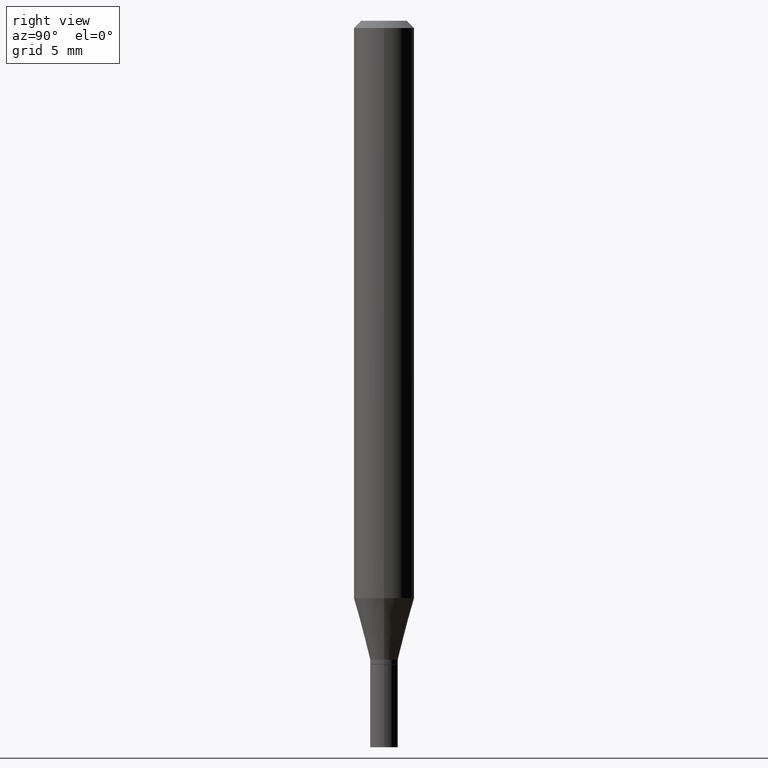
[diagram: clean part render]
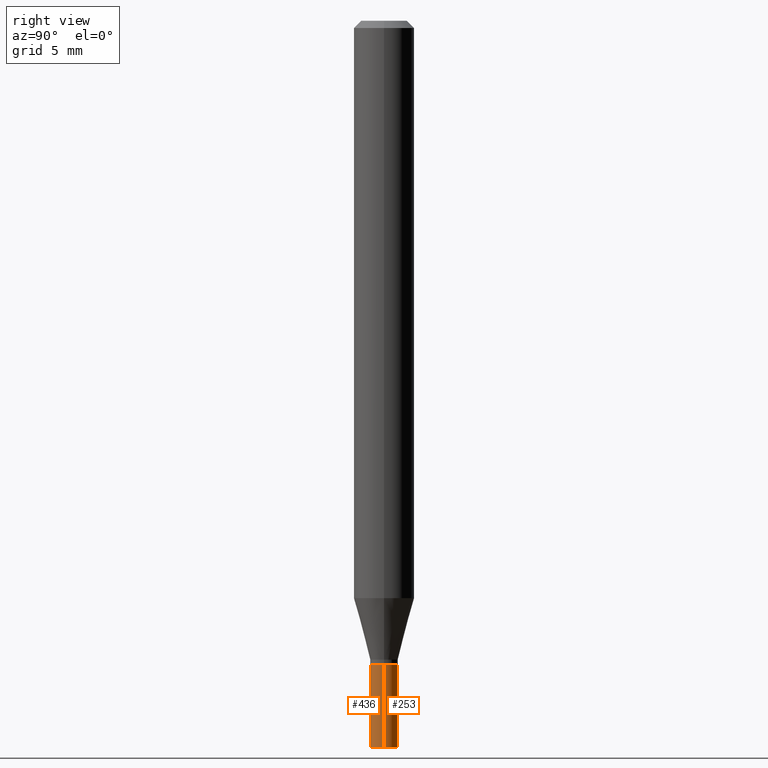
[diagram: same view with one multi-face feature highlighted, each face labeled with its STEP entity id]
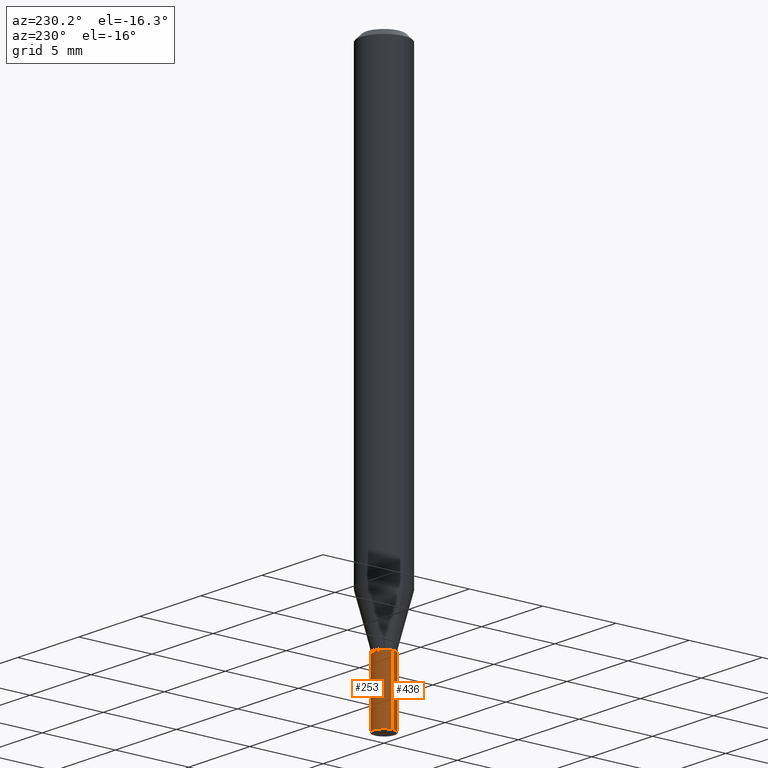
[diagram: same view with one multi-face feature highlighted, each face labeled with its STEP entity id]
A machine part, right view. The highlighted faces form ONE feature: a constant-radius fillet chain: 2 tangent blend faces with common blend radius 0.7239 mm. The faces share edges in the B-rep.
A second angle (auxiliary view) of the same feature is appended — it is thin or edge-on in the first view.
Their STEP definitions:
[1] entity #253 (Cylinder):
#6 = DIRECTION ( 'NONE',  ( -2.445468806185136597E-29, 3.491481338843145583E-15, 1.000000000000000000 ) ) ;
#12 = FACE_OUTER_BOUND ( 'NONE', #301, .T. ) ;
#19 = CARTESIAN_POINT ( 'NONE',  ( 3.668203209277704895E-29, -5.237222008264718177E-15, -1.500000000000000222 ) ) ;
#26 = CIRCLE ( 'NONE', #284, 0.02850000000000000103 ) ;
#34 = VERTEX_POINT ( 'NONE', #240 ) ;
#39 = LINE ( 'NONE', #238, #209 ) ;
#41 = AXIS2_PLACEMENT_3D ( 'NONE', #149, #6, #308 ) ;
#46 = EDGE_CURVE ( 'NONE', #34, #62, #39, .T. ) ;
#62 = VERTEX_POINT ( 'NONE', #245 ) ;
#84 = ORIENTED_EDGE ( 'NONE', *, *, #96, .T. ) ;
#96 = EDGE_CURVE ( 'NONE', #226, #295, #347, .T. ) ;
#108 = CARTESIAN_POINT ( 'NONE',  ( -0.02850000000000000103, -4.736195674102000895E-15, -1.500000000000000222 ) ) ;
#110 = CIRCLE ( 'NONE', #41, 0.02850000000000000103 ) ;
#122 = EDGE_CURVE ( 'NONE', #62, #295, #110, .T. ) ;
#125 = CYLINDRICAL_SURFACE ( 'NONE', #249, 0.02850000000000000103 ) ;
#132 = ORIENTED_EDGE ( 'NONE', *, *, #293, .T. ) ;
#149 = CARTESIAN_POINT ( 'NONE',  ( 3.250028043420046945E-29, -4.640178699322541079E-15, -1.329000000000000181 ) ) ;
#161 = CARTESIAN_POINT ( 'NONE',  ( 0.000000000000000000, 0.000000000000000000, 0.000000000000000000 ) ) ;
#167 = ORIENTED_EDGE ( 'NONE', *, *, #46, .F. ) ;
#188 = DIRECTION ( 'NONE',  ( 1.000000000000000000, -6.982962677686266711E-15, 4.876176775795936353E-29 ) ) ;
#209 = VECTOR ( 'NONE', #306, 39.37007874015748143 ) ;
#221 = DIRECTION ( 'NONE',  ( 1.000000000000000000, -6.982962677686280910E-15, 0.000000000000000000 ) ) ;
#226 = VERTEX_POINT ( 'NONE', #108 ) ;
#238 = CARTESIAN_POINT ( 'NONE',  ( 0.02850000000000000103, -1.990144363140586052E-16, 1.389710381101841869E-30 ) ) ;
#240 = CARTESIAN_POINT ( 'NONE',  ( 0.02850000000000000103, -5.436236444578777472E-15, -1.500000000000000222 ) ) ;
#245 = CARTESIAN_POINT ( 'NONE',  ( 0.02850000000000000103, -4.839193135636600375E-15, -1.329000000000000181 ) ) ;
#249 = AXIS2_PLACEMENT_3D ( 'NONE', #161, #325, #188 ) ;
#253 = ADVANCED_FACE ( 'NONE', ( #12 ), #125, .T. ) ;
#262 = VECTOR ( 'NONE', #314, 39.37007874015748143 ) ;
#284 = AXIS2_PLACEMENT_3D ( 'NONE', #19, #358, #221 ) ;
#293 = EDGE_CURVE ( 'NONE', #34, #226, #26, .T. ) ;
#295 = VERTEX_POINT ( 'NONE', #327 ) ;
#301 = EDGE_LOOP ( 'NONE', ( #132, #84, #368, #167 ) ) ;
#306 = DIRECTION ( 'NONE',  ( -2.445468806185136877E-29, 3.491481338843145188E-15, 1.000000000000000000 ) ) ;
#308 = DIRECTION ( 'NONE',  ( 1.000000000000000000, -6.982962677686280910E-15, 0.000000000000000000 ) ) ;
#313 = CARTESIAN_POINT ( 'NONE',  ( -0.02850000000000000103, 2.025046796916285603E-16, -1.401896500722648086E-30 ) ) ;
#314 = DIRECTION ( 'NONE',  ( -2.445468806185136877E-29, 3.491481338843145188E-15, 1.000000000000000000 ) ) ;
#325 = DIRECTION ( 'NONE',  ( -2.445468806185136597E-29, 3.491481338843145583E-15, 1.000000000000000000 ) ) ;
#327 = CARTESIAN_POINT ( 'NONE',  ( -0.02850000000000000103, -4.736195674102000895E-15, -1.329000000000000181 ) ) ;
#347 = LINE ( 'NONE', #313, #262 ) ;
#358 = DIRECTION ( 'NONE',  ( -2.445468806185136597E-29, 3.491481338843145583E-15, 1.000000000000000000 ) ) ;
#368 = ORIENTED_EDGE ( 'NONE', *, *, #122, .F. ) ;
[2] entity #436 (Cylinder):
#4 = ORIENTED_EDGE ( 'NONE', *, *, #466, .T. ) ;
#13 = DIRECTION ( 'NONE',  ( 1.000000000000000000, -6.982962677686266711E-15, 4.876176775795936353E-29 ) ) ;
#34 = VERTEX_POINT ( 'NONE', #240 ) ;
#39 = LINE ( 'NONE', #238, #209 ) ;
#46 = EDGE_CURVE ( 'NONE', #34, #62, #39, .T. ) ;
#62 = VERTEX_POINT ( 'NONE', #245 ) ;
#87 = AXIS2_PLACEMENT_3D ( 'NONE', #162, #365, #13 ) ;
#96 = EDGE_CURVE ( 'NONE', #226, #295, #347, .T. ) ;
#108 = CARTESIAN_POINT ( 'NONE',  ( -0.02850000000000000103, -4.736195674102000895E-15, -1.500000000000000222 ) ) ;
#113 = DIRECTION ( 'NONE',  ( 1.000000000000000000, -6.982962677686280910E-15, 0.000000000000000000 ) ) ;
#150 = FACE_OUTER_BOUND ( 'NONE', #326, .T. ) ;
#162 = CARTESIAN_POINT ( 'NONE',  ( 0.000000000000000000, 0.000000000000000000, 0.000000000000000000 ) ) ;
#173 = CIRCLE ( 'NONE', #409, 0.02850000000000000103 ) ;
#202 = ORIENTED_EDGE ( 'NONE', *, *, #46, .T. ) ;
#209 = VECTOR ( 'NONE', #306, 39.37007874015748143 ) ;
#222 = DIRECTION ( 'NONE',  ( -2.445468806185136597E-29, 3.491481338843145583E-15, 1.000000000000000000 ) ) ;
#226 = VERTEX_POINT ( 'NONE', #108 ) ;
#238 = CARTESIAN_POINT ( 'NONE',  ( 0.02850000000000000103, -1.990144363140586052E-16, 1.389710381101841869E-30 ) ) ;
#240 = CARTESIAN_POINT ( 'NONE',  ( 0.02850000000000000103, -5.436236444578777472E-15, -1.500000000000000222 ) ) ;
#245 = CARTESIAN_POINT ( 'NONE',  ( 0.02850000000000000103, -4.839193135636600375E-15, -1.329000000000000181 ) ) ;
#254 = CYLINDRICAL_SURFACE ( 'NONE', #87, 0.02850000000000000103 ) ;
#262 = VECTOR ( 'NONE', #314, 39.37007874015748143 ) ;
#280 = CARTESIAN_POINT ( 'NONE',  ( 3.668203209277704895E-29, -5.237222008264718177E-15, -1.500000000000000222 ) ) ;
#288 = DIRECTION ( 'NONE',  ( 1.000000000000000000, -6.982962677686280910E-15, 0.000000000000000000 ) ) ;
#295 = VERTEX_POINT ( 'NONE', #327 ) ;
#306 = DIRECTION ( 'NONE',  ( -2.445468806185136877E-29, 3.491481338843145188E-15, 1.000000000000000000 ) ) ;
#313 = CARTESIAN_POINT ( 'NONE',  ( -0.02850000000000000103, 2.025046796916285603E-16, -1.401896500722648086E-30 ) ) ;
#314 = DIRECTION ( 'NONE',  ( -2.445468806185136877E-29, 3.491481338843145188E-15, 1.000000000000000000 ) ) ;
#326 = EDGE_LOOP ( 'NONE', ( #352, #4, #202, #367 ) ) ;
#327 = CARTESIAN_POINT ( 'NONE',  ( -0.02850000000000000103, -4.736195674102000895E-15, -1.329000000000000181 ) ) ;
#347 = LINE ( 'NONE', #313, #262 ) ;
#352 = ORIENTED_EDGE ( 'NONE', *, *, #96, .F. ) ;
#365 = DIRECTION ( 'NONE',  ( -2.445468806185136597E-29, 3.491481338843145583E-15, 1.000000000000000000 ) ) ;
#367 = ORIENTED_EDGE ( 'NONE', *, *, #371, .F. ) ;
#371 = EDGE_CURVE ( 'NONE', #295, #62, #372, .T. ) ;
#372 = CIRCLE ( 'NONE', #417, 0.02850000000000000103 ) ;
#409 = AXIS2_PLACEMENT_3D ( 'NONE', #280, #438, #113 ) ;
#417 = AXIS2_PLACEMENT_3D ( 'NONE', #444, #222, #288 ) ;
#436 = ADVANCED_FACE ( 'NONE', ( #150 ), #254, .T. ) ;
#438 = DIRECTION ( 'NONE',  ( -2.445468806185136597E-29, 3.491481338843145583E-15, 1.000000000000000000 ) ) ;
#444 = CARTESIAN_POINT ( 'NONE',  ( 3.250028043420046945E-29, -4.640178699322541079E-15, -1.329000000000000181 ) ) ;
#466 = EDGE_CURVE ( 'NONE', #226, #34, #173, .T. ) ;